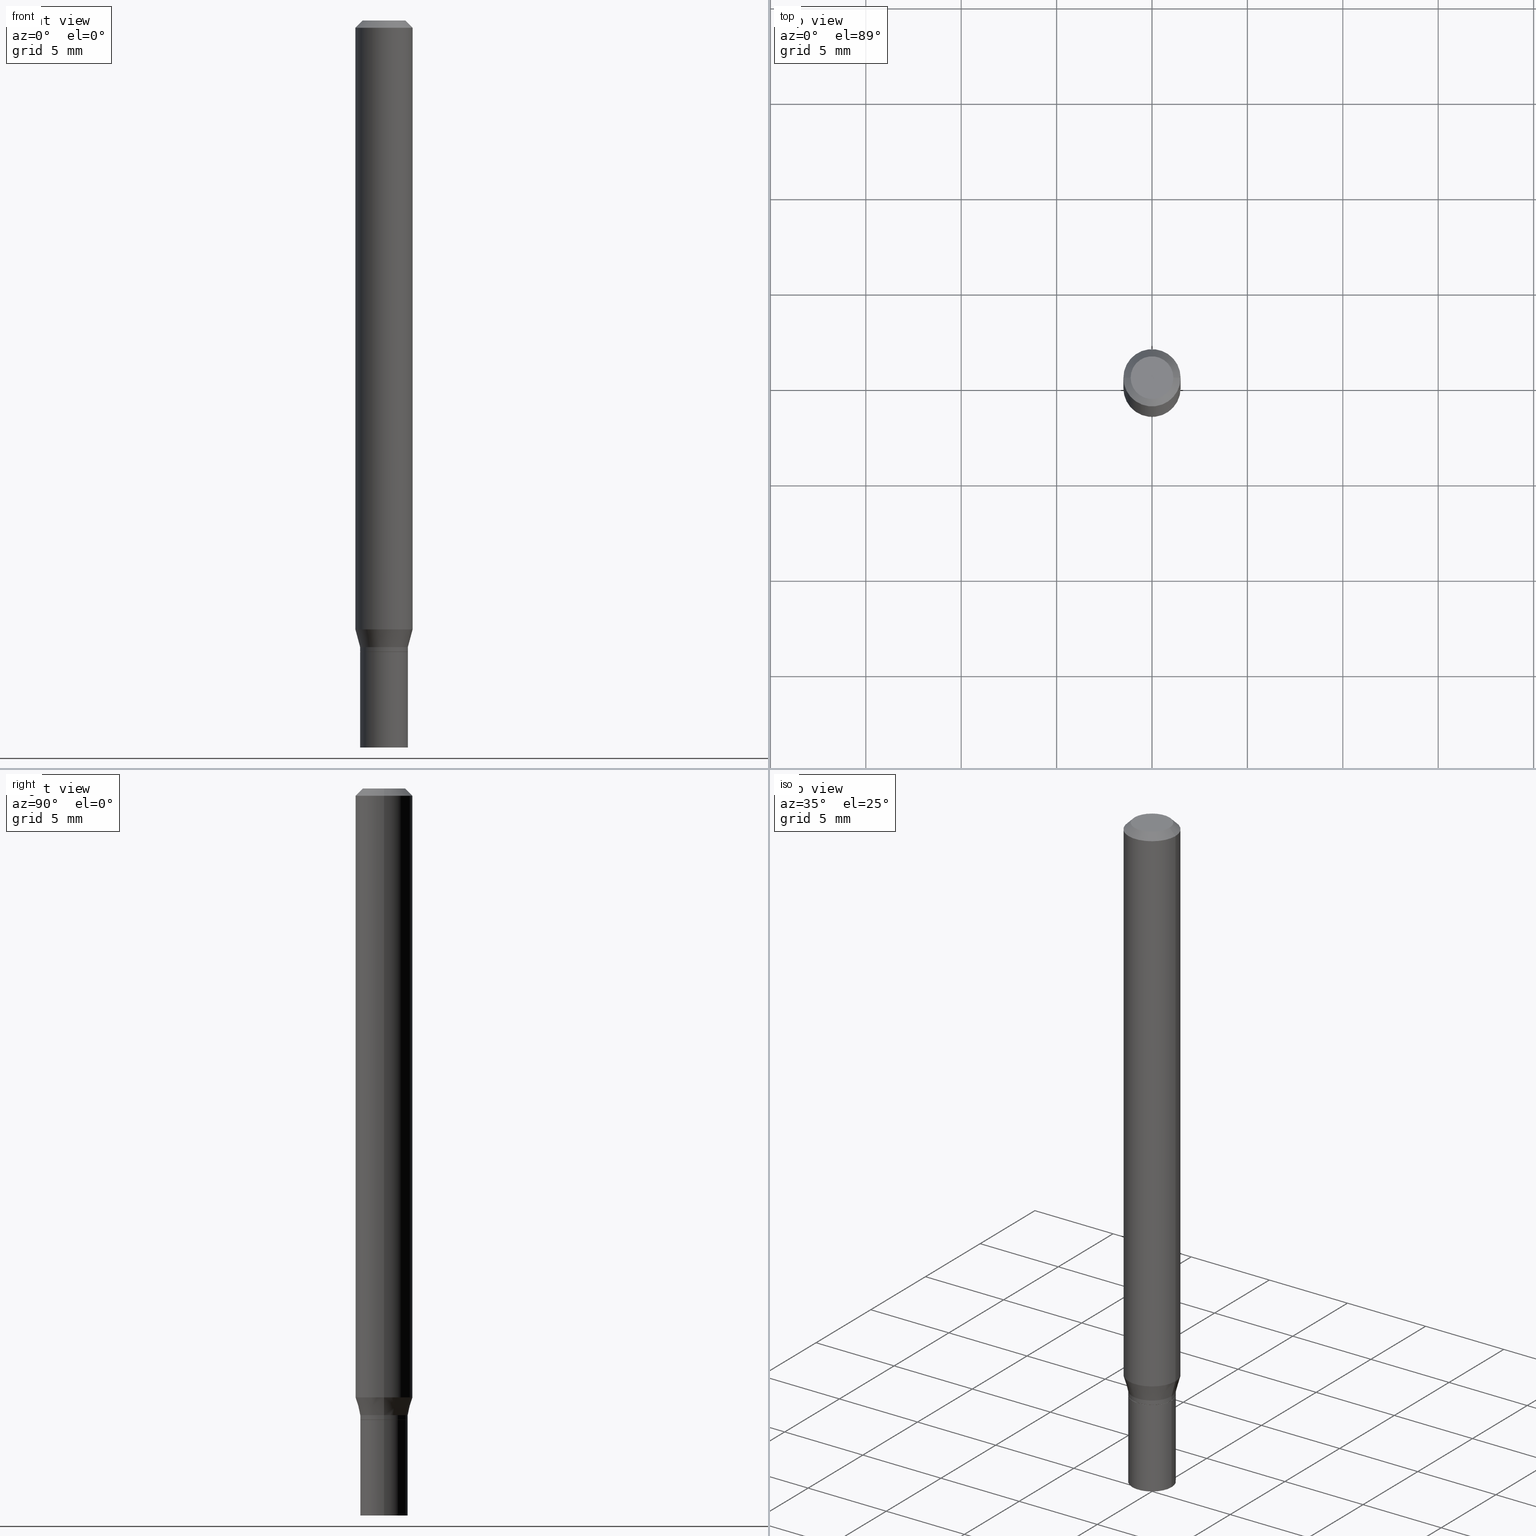
[diagram: canonical four-view strip — front | top / right | iso, engineering-drawing reading convention]
A machine part, canonical four-view strip (front | top / right | iso — engineering-drawing reading convention). The complete STEP part file that produces these views, byte-faithful:
ISO-10303-21;
HEADER;
FILE_DESCRIPTION (( 'STEP AP203' ),
    '1' );
FILE_NAME ('49139.STEP',
    '2024-03-12T19:57:07',
    ( '' ),
    ( '' ),
    'SwSTEP 2.0',
    'SolidWorks 2023',
    '' );
FILE_SCHEMA (( 'CONFIG_CONTROL_DESIGN' ));
ENDSEC;

DATA;
#1 = FACE_OUTER_BOUND ( 'NONE', #26, .T. ) ;
#2 = ORIENTED_EDGE ( 'NONE', *, *, #53, .T. ) ;
#3 = DIRECTION ( 'NONE',  ( -2.445468806185136877E-29, 3.491481338843145188E-15, 1.000000000000000000 ) ) ;
#4 = EDGE_LOOP ( 'NONE', ( #274, #415, #161, #230 ) ) ;
#5 = ORIENTED_EDGE ( 'NONE', *, *, #147, .F. ) ;
#6 = CIRCLE ( 'NONE', #303, 0.04919999999999991741 ) ;
#7 = PRODUCT_DEFINITION ( 'UNKNOWN', '', #244, #185 ) ;
#8 = AXIS2_PLACEMENT_3D ( 'NONE', #406, #445, #105 ) ;
#9 = LINE ( 'NONE', #154, #466 ) ;
#10 = DIRECTION ( 'NONE',  ( -2.445468806185136597E-29, 3.491481338843145583E-15, 1.000000000000000000 ) ) ;
#11 = CARTESIAN_POINT ( 'NONE',  ( -0.04870000000000000023, -4.203715020331334704E-15, -1.303100000000000147 ) ) ;
#12 = CARTESIAN_POINT ( 'NONE',  ( 3.668203209277704895E-29, -5.237222008264718177E-15, -1.500000000000000222 ) ) ;
#13 = DIRECTION ( 'NONE',  ( 1.000000000000000000, -6.982962677686272233E-15, 0.000000000000000000 ) ) ;
#14 = LINE ( 'NONE', #454, #310 ) ;
#15 = CARTESIAN_POINT ( 'NONE',  ( 3.186690401339851824E-29, -4.549749332646504039E-15, -1.303100000000000147 ) ) ;
#16 = CIRCLE ( 'NONE', #235, 0.04920000000000000068 ) ;
#17 = DIRECTION ( 'NONE',  ( 1.000000000000000000, -6.982962677686266711E-15, 4.876176775795935793E-29 ) ) ;
#18 = VERTEX_POINT ( 'NONE', #427 ) ;
#19 = EDGE_CURVE ( 'NONE', #126, #286, #368, .T. ) ;
#20 = LINE ( 'NONE', #309, #407 ) ;
#21 = VECTOR ( 'NONE', #375, 39.37007874015748143 ) ;
#22 = DIRECTION ( 'NONE',  ( 1.000000000000000000, -6.982962677686273810E-15, 0.000000000000000000 ) ) ;
#23 = PERSON_AND_ORGANIZATION ( #218, #389 ) ;
#24 = DIRECTION ( 'NONE',  ( 1.000000000000000000, -6.982962677686267499E-15, 4.876176775795936353E-29 ) ) ;
#25 = AXIS2_PLACEMENT_3D ( 'NONE', #73, #302, #17 ) ;
#26 = EDGE_LOOP ( 'NONE', ( #428, #28, #365, #433 ) ) ;
#27 = CALENDAR_DATE ( 2024, 12, 3 ) ;
#28 = ORIENTED_EDGE ( 'NONE', *, *, #57, .T. ) ;
#29 = LOCAL_TIME ( 15, 57, 7.000000000000000000, #292 ) ;
#30 = CONICAL_SURFACE ( 'NONE', #8, 0.04919999999999991741, 0.2617993877991506291 ) ;
#31 = VERTEX_POINT ( 'NONE', #41 ) ;
#32 = ORIENTED_EDGE ( 'NONE', *, *, #40, .T. ) ;
#33 = LINE ( 'NONE', #184, #321 ) ;
#34 = FACE_OUTER_BOUND ( 'NONE', #83, .T. ) ;
#35 = EDGE_LOOP ( 'NONE', ( #179, #32, #380, #425 ) ) ;
#36 = CC_DESIGN_APPROVAL ( #128, ( #244 ) ) ;
#37 = APPROVAL_ROLE ( '' ) ;
#38 = DIRECTION ( 'NONE',  ( -2.445468806185136597E-29, 3.491481338843145583E-15, 1.000000000000000000 ) ) ;
#39 = PLANE ( 'NONE',  #424 ) ;
#40 = EDGE_CURVE ( 'NONE', #169, #286, #72, .T. ) ;
#41 = CARTESIAN_POINT ( 'NONE',  ( -0.04870000000000000023, -4.201065793157224292E-15, -1.303100000000000147 ) ) ;
#42 = DIRECTION ( 'NONE',  ( -2.445468806185136877E-29, 3.491481338843145188E-15, 1.000000000000000000 ) ) ;
#43 = CARTESIAN_POINT ( 'NONE',  ( 3.161991166397382055E-29, -4.514485371124187300E-15, -1.293000000000000149 ) ) ;
#44 = CARTESIAN_POINT ( 'NONE',  ( 0.05905000000000000526, -4.123439461173741313E-16, 2.879382386107500571E-30 ) ) ;
#45 = DIRECTION ( 'NONE',  ( -2.445468806185136597E-29, 3.491481338843145583E-15, 1.000000000000000000 ) ) ;
#46 = COORDINATED_UNIVERSAL_TIME_OFFSET ( 5, 0, .BEHIND. ) ;
#47 = DIRECTION ( 'NONE',  ( -2.445468806185136597E-29, 3.491481338843145583E-15, 1.000000000000000000 ) ) ;
#48 = VERTEX_POINT ( 'NONE', #364 ) ;
#49 = CYLINDRICAL_SURFACE ( 'NONE', #397, 0.05905000000000000526 ) ;
#50 = COORDINATED_UNIVERSAL_TIME_OFFSET ( 5, 0, .BEHIND. ) ;
#51 = VECTOR ( 'NONE', #249, 39.37007874015748143 ) ;
#52 = ADVANCED_FACE ( 'NONE', ( #182 ), #122, .T. ) ;
#53 = EDGE_CURVE ( 'NONE', #246, #312, #9, .T. ) ;
#54 = VERTEX_POINT ( 'NONE', #224 ) ;
#55 = DATE_TIME_ROLE ( 'classification_date' ) ;
#56 = AXIS2_PLACEMENT_3D ( 'NONE', #208, #143, #443 ) ;
#57 = EDGE_CURVE ( 'NONE', #54, #270, #416, .T. ) ;
#58 = ORIENTED_EDGE ( 'NONE', *, *, #107, .F. ) ;
#59 = CYLINDRICAL_SURFACE ( 'NONE', #455, 0.04919999999999991741 ) ;
#60 = ORIENTED_EDGE ( 'NONE', *, *, #53, .F. ) ;
#61 = ADVANCED_FACE ( 'NONE', ( #297 ), #30, .T. ) ;
#62 = CARTESIAN_POINT ( 'NONE',  ( 3.576687321579069994E-29, -5.368277968210015545E-15, -1.500000000000000222 ) ) ;
#63 = APPROVAL ( #383, 'UNSPECIFIED' ) ;
#64 = ORIENTED_EDGE ( 'NONE', *, *, #80, .F. ) ;
#65 = VERTEX_POINT ( 'NONE', #189 ) ;
#66 = CARTESIAN_POINT ( 'NONE',  ( 0.04870000000000000023, -4.889819615049825556E-15, -1.303100000000000147 ) ) ;
#67 = FACE_OUTER_BOUND ( 'NONE', #253, .T. ) ;
#68 = EDGE_CURVE ( 'NONE', #137, #18, #448, .T. ) ;
#69 = AXIS2_PLACEMENT_3D ( 'NONE', #192, #10, #155 ) ;
#70 = CARTESIAN_POINT ( 'NONE',  ( -0.05905000000000000526, 4.195754854663391971E-16, -2.904631170795522242E-30 ) ) ;
#71 = DIRECTION ( 'NONE',  ( -2.445468806185136597E-29, 3.491481338843145583E-15, 1.000000000000000000 ) ) ;
#72 = LINE ( 'NONE', #373, #429 ) ;
#73 = CARTESIAN_POINT ( 'NONE',  ( 0.000000000000000000, 0.000000000000000000, 0.000000000000000000 ) ) ;
#74 = SECURITY_CLASSIFICATION_LEVEL ( 'unclassified' ) ;
#75 = ADVANCED_FACE ( 'NONE', ( #34 ), #116, .T. ) ;
#76 = DIRECTION ( 'NONE',  ( -2.445468806185136597E-29, 3.491481338843145583E-15, 1.000000000000000000 ) ) ;
#77 = DIRECTION ( 'NONE',  ( -2.445468806185136597E-29, 3.491481338843145583E-15, 1.000000000000000000 ) ) ;
#78 = EDGE_LOOP ( 'NONE', ( #462, #329 ) ) ;
#79 = CARTESIAN_POINT ( 'NONE',  ( 3.186690401339851824E-29, -4.549749332646504039E-15, -1.303100000000000147 ) ) ;
#80 = EDGE_CURVE ( 'NONE', #31, #54, #334, .T. ) ;
#81 =( NAMED_UNIT ( * ) SI_UNIT ( $, .STERADIAN. ) SOLID_ANGLE_UNIT ( ) );
#82 = CARTESIAN_POINT ( 'NONE',  ( 0.000000000000000000, 0.000000000000000000, 0.000000000000000000 ) ) ;
#83 = EDGE_LOOP ( 'NONE', ( #394, #256, #183, #207 ) ) ;
#84 = APPLICATION_PROTOCOL_DEFINITION ( 'international standard', 'config_control_design', 1994, #333 ) ;
#85 = CC_DESIGN_PERSON_AND_ORGANIZATION_ASSIGNMENT ( #228, #376, ( #320 ) ) ;
#86 = DIRECTION ( 'NONE',  ( 1.000000000000000000, 0.000000000000000000, 0.000000000000000000 ) ) ;
#87 = VERTEX_POINT ( 'NONE', #108 ) ;
#88 = APPROVAL_ROLE ( '' ) ;
#89 = EDGE_LOOP ( 'NONE', ( #250, #239, #439, #326 ) ) ;
#90 = EDGE_CURVE ( 'NONE', #312, #18, #254, .T. ) ;
#91 = CARTESIAN_POINT ( 'NONE',  ( 3.186690401339851824E-29, -4.549749332646504039E-15, -1.303100000000000147 ) ) ;
#92 = DIRECTION ( 'NONE',  ( 1.000000000000000000, -6.982962677686266711E-15, 0.000000000000000000 ) ) ;
#93 = VERTEX_POINT ( 'NONE', #66 ) ;
#94 = DIRECTION ( 'NONE',  ( -2.445468806185136597E-29, 3.491481338843145583E-15, 1.000000000000000000 ) ) ;
#95 = ORIENTED_EDGE ( 'NONE', *, *, #158, .T. ) ;
#96 = CARTESIAN_POINT ( 'NONE',  ( 0.000000000000000000, 0.000000000000000000, 0.000000000000000000 ) ) ;
#97 = FACE_OUTER_BOUND ( 'NONE', #78, .T. ) ;
#98 = ORIENTED_EDGE ( 'NONE', *, *, #172, .T. ) ;
#99 = ADVANCED_FACE ( 'NONE', ( #151 ), #157, .T. ) ;
#100 = DIRECTION ( 'NONE',  ( 1.000000000000000000, -6.982962677686273021E-15, 0.000000000000000000 ) ) ;
#101 = VERTEX_POINT ( 'NONE', #451 ) ;
#102 = AXIS2_PLACEMENT_3D ( 'NONE', #187, #300, #331 ) ;
#103 = DIMENSIONAL_EXPONENTS ( 1.000000000000000000, 0.000000000000000000, 0.000000000000000000, 0.000000000000000000, 0.000000000000000000, 0.000000000000000000, 0.000000000000000000 ) ;
#104 = ORIENTED_EDGE ( 'NONE', *, *, #232, .T. ) ;
#105 = DIRECTION ( 'NONE',  ( 1.000000000000000000, -6.982962677686273810E-15, 0.000000000000000000 ) ) ;
#106 = CARTESIAN_POINT ( 'NONE',  ( 0.05904999999999999832, -4.798480017601685178E-15, -1.256239299545446553 ) ) ;
#107 = EDGE_CURVE ( 'NONE', #270, #54, #288, .T. ) ;
#108 = CARTESIAN_POINT ( 'NONE',  ( -0.04404999999999999888, 3.337856159934041534E-16, 3.533548453838689148E-16 ) ) ;
#109 = DIRECTION ( 'NONE',  ( -1.000000000000000000, 6.982962677686265922E-15, -4.876176775795935793E-29 ) ) ;
#110 = CC_DESIGN_SECURITY_CLASSIFICATION ( #320, ( #244 ) ) ;
#111 = AXIS2_PLACEMENT_3D ( 'NONE', #393, #290, #432 ) ;
#112 = CIRCLE ( 'NONE', #387, 0.04404999999999999888 ) ;
#113 = CARTESIAN_POINT ( 'NONE',  ( 0.04920000000000000068, -4.893311096388667774E-15, -1.303100000000000147 ) ) ;
#114 = FACE_OUTER_BOUND ( 'NONE', #35, .T. ) ;
#115 = PERSON_AND_ORGANIZATION_ROLE ( 'creator' ) ;
#116 = CYLINDRICAL_SURFACE ( 'NONE', #231, 0.04919999999999991741 ) ;
#117 = PLANE ( 'NONE',  #370 ) ;
#118 = FACE_OUTER_BOUND ( 'NONE', #325, .T. ) ;
#119 = CC_DESIGN_PERSON_AND_ORGANIZATION_ASSIGNMENT ( #447, #115, ( #244 ) ) ;
#120 = CARTESIAN_POINT ( 'NONE',  ( 0.000000000000000000, 0.000000000000000000, 0.000000000000000000 ) ) ;
#121 = CARTESIAN_POINT ( 'NONE',  ( 3.161991166397382055E-29, -4.514485371124187300E-15, -1.293000000000000149 ) ) ;
#122 = CONICAL_SURFACE ( 'NONE', #199, 0.04919999999999991741, 0.2617993877991506291 ) ;
#123 = AXIS2_PLACEMENT_3D ( 'NONE', #120, #47, #272 ) ;
#124 = LOCAL_TIME ( 15, 57, 7.000000000000000000, #131 ) ;
#125 = DIRECTION ( 'NONE',  ( -1.000000000000000000, 6.982962677686266711E-15, 0.000000000000000000 ) ) ;
#126 = VERTEX_POINT ( 'NONE', #113 ) ;
#127 = EDGE_CURVE ( 'NONE', #246, #87, #263, .T. ) ;
#128 = APPROVAL ( #358, 'UNSPECIFIED' ) ;
#129 = ORIENTED_EDGE ( 'NONE', *, *, #19, .T. ) ;
#130 = ORIENTED_EDGE ( 'NONE', *, *, #209, .T. ) ;
#131 = COORDINATED_UNIVERSAL_TIME_OFFSET ( 5, 0, .BEHIND. ) ;
#132 = AXIS2_PLACEMENT_3D ( 'NONE', #121, #45, #22 ) ;
#133 = UNCERTAINTY_MEASURE_WITH_UNIT (LENGTH_MEASURE( 1.000000000000000082E-05 ), #269, 'distance_accuracy_value', 'NONE');
#134 = EDGE_CURVE ( 'NONE', #101, #48, #6, .T. ) ;
#135 = DATE_AND_TIME ( #340, #140 ) ;
#136 = DIRECTION ( 'NONE',  ( -2.445468806185136597E-29, 3.491481338843145583E-15, 1.000000000000000000 ) ) ;
#137 = VERTEX_POINT ( 'NONE', #170 ) ;
#138 = DIRECTION ( 'NONE',  ( 1.000000000000000000, -6.982962677686265922E-15, 4.876176775795935793E-29 ) ) ;
#139 = ORIENTED_EDGE ( 'NONE', *, *, #80, .T. ) ;
#140 = LOCAL_TIME ( 15, 57, 7.000000000000000000, #46 ) ;
#141 = PERSON_AND_ORGANIZATION ( #218, #389 ) ;
#142 = SHAPE_DEFINITION_REPRESENTATION ( #204, #167 ) ;
#143 = DIRECTION ( 'NONE',  ( 2.445468806185136597E-29, -3.491481338843145583E-15, -1.000000000000000000 ) ) ;
#144 = EDGE_CURVE ( 'NONE', #137, #355, #378, .T. ) ;
#145 = CLOSED_SHELL ( 'NONE', ( #251, #171, #360, #163 ) ) ;
#146 = CIRCLE ( 'NONE', #132, 0.04919999999999991741 ) ;
#147 = EDGE_CURVE ( 'NONE', #18, #312, #273, .T. ) ;
#148 = DIRECTION ( 'NONE',  ( -2.445468806185136597E-29, 3.491481338843145583E-15, 1.000000000000000000 ) ) ;
#149 = DIRECTION ( 'NONE',  ( -2.445468806185136597E-29, 3.491481338843145583E-15, 1.000000000000000000 ) ) ;
#150 = DIRECTION ( 'NONE',  ( -2.438088387897960049E-29, 3.491481338843145188E-15, 1.000000000000000000 ) ) ;
#151 = FACE_OUTER_BOUND ( 'NONE', #366, .T. ) ;
#152 = CYLINDRICAL_SURFACE ( 'NONE', #25, 0.04920000000000000068 ) ;
#153 = AXIS2_PLACEMENT_3D ( 'NONE', #298, #38, #403 ) ;
#154 = CARTESIAN_POINT ( 'NONE',  ( 0.05905000000000001914, -4.574846268510562433E-16, -0.01499999999999999944 ) ) ;
#155 = DIRECTION ( 'NONE',  ( 1.000000000000000000, -6.982962677686261977E-15, 0.000000000000000000 ) ) ;
#156 = CARTESIAN_POINT ( 'NONE',  ( 0.000000000000000000, 0.000000000000000000, 0.000000000000000000 ) ) ;
#157 = CONICAL_SURFACE ( 'NONE', #275, 0.04870000000000000023, 0.7853981633974739252 ) ;
#158 = EDGE_CURVE ( 'NONE', #101, #355, #318, .T. ) ;
#159 = ORIENTED_EDGE ( 'NONE', *, *, #285, .F. ) ;
#160 = PERSON_AND_ORGANIZATION_ROLE ( 'creator' ) ;
#161 = ORIENTED_EDGE ( 'NONE', *, *, #314, .T. ) ;
#162 = AXIS2_PLACEMENT_3D ( 'NONE', #362, #136, #100 ) ;
#163 = ADVANCED_FACE ( 'NONE', ( #323 ), #284, .F. ) ;
#164 = APPROVAL ( #248, 'UNSPECIFIED' ) ;
#165 = CARTESIAN_POINT ( 'NONE',  ( 3.161991166397382055E-29, -4.514485371124187300E-15, -1.293000000000000149 ) ) ;
#166 = ORIENTED_EDGE ( 'NONE', *, *, #464, .T. ) ;
#167 = ADVANCED_BREP_SHAPE_REPRESENTATION ( '49139', ( #241, #392, #289 ), #186 ) ;
#168 = DIRECTION ( 'NONE',  ( 1.000000000000000000, -6.982962677686273810E-15, 0.000000000000000000 ) ) ;
#169 = VERTEX_POINT ( 'NONE', #213 ) ;
#170 = CARTESIAN_POINT ( 'NONE',  ( -0.05904999999999999832, -3.966560586017971554E-15, -1.256239299545446553 ) ) ;
#171 = ADVANCED_FACE ( 'NONE', ( #97 ), #359, .F. ) ;
#172 = EDGE_CURVE ( 'NONE', #286, #126, #353, .T. ) ;
#173 = EDGE_LOOP ( 'NONE', ( #129, #98 ) ) ;
#174 = CONICAL_SURFACE ( 'NONE', #56, 0.05905000000000001914, 0.7853981633974372878 ) ;
#175 = DIRECTION ( 'NONE',  ( 1.000000000000000000, -6.982962677686266711E-15, 4.876176775795935793E-29 ) ) ;
#176 = DIRECTION ( 'NONE',  ( -2.445468806185136597E-29, 3.491481338843145583E-15, 1.000000000000000000 ) ) ;
#177 = ORIENTED_EDGE ( 'NONE', *, *, #147, .T. ) ;
#178 = DIRECTION ( 'NONE',  ( -2.445468806185136597E-29, 3.491481338843145583E-15, 1.000000000000000000 ) ) ;
#179 = ORIENTED_EDGE ( 'NONE', *, *, #238, .T. ) ;
#180 = ADVANCED_FACE ( 'NONE', ( #1 ), #59, .T. ) ;
#181 = DATE_AND_TIME ( #27, #29 ) ;
#182 = FACE_OUTER_BOUND ( 'NONE', #458, .T. ) ;
#183 = ORIENTED_EDGE ( 'NONE', *, *, #134, .F. ) ;
#184 = CARTESIAN_POINT ( 'NONE',  ( -0.04919999999999991741, 3.495870259939687046E-16, -2.420116064405409213E-30 ) ) ;
#185 = DESIGN_CONTEXT ( 'detailed design', #444, 'design' ) ;
#186 =( GEOMETRIC_REPRESENTATION_CONTEXT ( 3 ) GLOBAL_UNCERTAINTY_ASSIGNED_CONTEXT ( ( #133 ) ) GLOBAL_UNIT_ASSIGNED_CONTEXT ( ( #269, #203, #81 ) ) REPRESENTATION_CONTEXT ( 'NONE', 'WORKASPACE' ) );
#187 = CARTESIAN_POINT ( 'NONE',  ( 3.185467666936759583E-29, -4.548003591977082535E-15, -1.302600000000000202 ) ) ;
#188 = CARTESIAN_POINT ( 'NONE',  ( 3.186690401339851824E-29, -4.549749332646504039E-15, -1.303100000000000147 ) ) ;
#189 = CARTESIAN_POINT ( 'NONE',  ( 0.04920000000000000068, -5.580783772006882701E-15, -1.500000000000000222 ) ) ;
#190 = DIRECTION ( 'NONE',  ( -0.7071067811865396902, 2.468850131082174625E-15, -0.7071067811865553443 ) ) ;
#191 = CARTESIAN_POINT ( 'NONE',  ( 0.000000000000000000, 0.000000000000000000, 0.000000000000000000 ) ) ;
#192 = CARTESIAN_POINT ( 'NONE',  ( 3.668203209277704895E-29, -5.237222008264718177E-15, -1.500000000000000222 ) ) ;
#193 = CIRCLE ( 'NONE', #223, 0.04870000000000000023 ) ;
#194 = LINE ( 'NONE', #299, #295 ) ;
#195 = ORIENTED_EDGE ( 'NONE', *, *, #459, .T. ) ;
#196 = FACE_OUTER_BOUND ( 'NONE', #319, .T. ) ;
#197 = EDGE_CURVE ( 'NONE', #54, #48, #33, .T. ) ;
#198 = CARTESIAN_POINT ( 'NONE',  ( 3.668203209277705088E-31, -5.237222008264718399E-17, -0.01499999999999999944 ) ) ;
#199 = AXIS2_PLACEMENT_3D ( 'NONE', #43, #327, #259 ) ;
#200 = CALENDAR_DATE ( 2024, 12, 3 ) ;
#201 = CIRCLE ( 'NONE', #69, 0.04920000000000000068 ) ;
#202 = APPROVAL_PERSON_ORGANIZATION ( #317, #164, #88 ) ;
#203 =( NAMED_UNIT ( * ) PLANE_ANGLE_UNIT ( ) SI_UNIT ( $, .RADIAN. ) );
#204 = PRODUCT_DEFINITION_SHAPE ( 'NONE', 'NONE',  #7 ) ;
#205 = CALENDAR_DATE ( 2024, 12, 3 ) ;
#206 = AXIS2_PLACEMENT_3D ( 'NONE', #264, #410, #226 ) ;
#207 = ORIENTED_EDGE ( 'NONE', *, *, #374, .F. ) ;
#208 = CARTESIAN_POINT ( 'NONE',  ( 3.668203209277705088E-31, -5.237222008264718399E-17, -0.01499999999999999944 ) ) ;
#209 = EDGE_CURVE ( 'NONE', #93, #31, #440, .T. ) ;
#210 = CC_DESIGN_PERSON_AND_ORGANIZATION_ASSIGNMENT ( #23, #160, ( #7 ) ) ;
#211 = ORIENTED_EDGE ( 'NONE', *, *, #90, .T. ) ;
#212 = LOCAL_TIME ( 15, 57, 7.000000000000000000, #237 ) ;
#213 = CARTESIAN_POINT ( 'NONE',  ( -0.04920000000000000068, -4.543898644461642453E-15, -1.500000000000000222 ) ) ;
#214 = AXIS2_PLACEMENT_3D ( 'NONE', #261, #71, #225 ) ;
#215 = ORIENTED_EDGE ( 'NONE', *, *, #127, .T. ) ;
#216 = ADVANCED_FACE ( 'NONE', ( #391 ), #174, .T. ) ;
#217 = DIRECTION ( 'NONE',  ( 1.000000000000000000, -6.982962677686271444E-15, 0.000000000000000000 ) ) ;
#218 = PERSON ( 'UNSPECIFIED', 'UNSPECIFIED', 'UNSPECIFIED', ('UNSPECIFIED'), ('UNSPECIFIED'), ('UNSPECIFIED') ) ;
#219 = ORIENTED_EDGE ( 'NONE', *, *, #127, .F. ) ;
#220 = DIRECTION ( 'NONE',  ( 0.7071067811865396902, -7.319954787623229224E-15, -0.7071067811865553443 ) ) ;
#221 = DIRECTION ( 'NONE',  ( -2.445468806185136597E-29, 3.491481338843145583E-15, 1.000000000000000000 ) ) ;
#222 = VECTOR ( 'NONE', #369, 39.37007874015748143 ) ;
#223 = AXIS2_PLACEMENT_3D ( 'NONE', #453, #379, #420 ) ;
#224 = CARTESIAN_POINT ( 'NONE',  ( -0.04919999999999992435, -4.198416565983113880E-15, -1.302600000000000202 ) ) ;
#225 = DIRECTION ( 'NONE',  ( 1.000000000000000000, -6.982962677686273021E-15, 0.000000000000000000 ) ) ;
#226 = DIRECTION ( 'NONE',  ( 1.000000000000000000, -6.982962677686265922E-15, 4.819687581474398999E-29 ) ) ;
#227 = LINE ( 'NONE', #44, #449 ) ;
#228 = PERSON_AND_ORGANIZATION ( #218, #389 ) ;
#229 = DIRECTION ( 'NONE',  ( 1.000000000000000000, -6.982962677686271444E-15, 0.000000000000000000 ) ) ;
#230 = ORIENTED_EDGE ( 'NONE', *, *, #172, .F. ) ;
#231 = AXIS2_PLACEMENT_3D ( 'NONE', #191, #336, #442 ) ;
#232 = EDGE_CURVE ( 'NONE', #93, #270, #341, .T. ) ;
#233 = DIRECTION ( 'NONE',  ( 2.445468806185136597E-29, -3.491481338843145583E-15, -1.000000000000000000 ) ) ;
#234 = PERSON_AND_ORGANIZATION ( #218, #389 ) ;
#235 = AXIS2_PLACEMENT_3D ( 'NONE', #12, #221, #305 ) ;
#236 = ORIENTED_EDGE ( 'NONE', *, *, #464, .F. ) ;
#237 = COORDINATED_UNIVERSAL_TIME_OFFSET ( 5, 0, .BEHIND. ) ;
#238 = EDGE_CURVE ( 'NONE', #65, #169, #201, .T. ) ;
#239 = ORIENTED_EDGE ( 'NONE', *, *, #68, .T. ) ;
#240 = ORIENTED_EDGE ( 'NONE', *, *, #285, .T. ) ;
#241 = MANIFOLD_SOLID_BREP ( 'Body-Move/Copy2[1]', #145 ) ;
#242 = DIRECTION ( 'NONE',  ( -2.445468806185136597E-29, 3.491481338843145583E-15, 1.000000000000000000 ) ) ;
#243 = AXIS2_PLACEMENT_3D ( 'NONE', #287, #178, #247 ) ;
#244 = PRODUCT_DEFINITION_FORMATION_WITH_SPECIFIED_SOURCE ( 'ANY', '', #351, .NOT_KNOWN. ) ;
#245 = DIRECTION ( 'NONE',  ( -2.438088387897960049E-29, 3.491481338843145188E-15, 1.000000000000000000 ) ) ;
#246 = VERTEX_POINT ( 'NONE', #335 ) ;
#247 = DIRECTION ( 'NONE',  ( 1.000000000000000000, -6.982962677686271444E-15, 0.000000000000000000 ) ) ;
#248 = APPROVAL_STATUS ( 'not_yet_approved' ) ;
#249 = DIRECTION ( 'NONE',  ( 0.2588190451025219052, 1.565188264969617826E-15, 0.9659258262890679791 ) ) ;
#250 = ORIENTED_EDGE ( 'NONE', *, *, #402, .T. ) ;
#251 = ADVANCED_FACE ( 'NONE', ( #114 ), #152, .T. ) ;
#252 = CARTESIAN_POINT ( 'NONE',  ( 3.435617637421961278E-16, 0.04919999999999544876, -1.303100000000000369 ) ) ;
#253 = EDGE_LOOP ( 'NONE', ( #294, #266 ) ) ;
#254 = CIRCLE ( 'NONE', #153, 0.05905000000000001914 ) ;
#255 = CC_DESIGN_DATE_AND_TIME_ASSIGNMENT ( #367, #400, ( #7 ) ) ;
#256 = ORIENTED_EDGE ( 'NONE', *, *, #197, .T. ) ;
#257 = DIRECTION ( 'NONE',  ( -0.7071067811865656694, 7.493145998870420424E-15, 0.7071067811865294761 ) ) ;
#258 = FACE_OUTER_BOUND ( 'NONE', #4, .T. ) ;
#259 = DIRECTION ( 'NONE',  ( 1.000000000000000000, -6.982962677686273810E-15, 0.000000000000000000 ) ) ;
#260 = LOCAL_TIME ( 15, 57, 7.000000000000000000, #50 ) ;
#262 = AXIS2_PLACEMENT_3D ( 'NONE', #304, #148, #13 ) ;
#261 = CARTESIAN_POINT ( 'NONE',  ( 3.072094020142255218E-29, -4.386136071484311047E-15, -1.256239299545446553 ) ) ;
#263 = CIRCLE ( 'NONE', #206, 0.04404999999999999888 ) ;
#264 = CARTESIAN_POINT ( 'NONE',  ( -8.641182519006289553E-45, 1.233731848647591164E-30, 3.533548453838711334E-16 ) ) ;
#265 = CARTESIAN_POINT ( 'NONE',  ( 0.04870000000000000023, -4.889819615049825556E-15, -1.303100000000000147 ) ) ;
#266 = ORIENTED_EDGE ( 'NONE', *, *, #459, .F. ) ;
#267 = PERSON_AND_ORGANIZATION ( #218, #389 ) ;
#268 = CARTESIAN_POINT ( 'NONE',  ( 3.075995059520799729E-16, 0.04404999999999999888, 2.287766971589501637E-17 ) ) ;
#269 =( CONVERSION_BASED_UNIT ( 'INCH', #422 ) LENGTH_UNIT ( ) NAMED_UNIT ( #103 ) );
#270 = VERTEX_POINT ( 'NONE', #332 ) ;
#271 = ADVANCED_FACE ( 'NONE', ( #196 ), #357, .T. ) ;
#272 = DIRECTION ( 'NONE',  ( 1.000000000000000000, -6.982962677686266711E-15, 4.876176775795935793E-29 ) ) ;
#273 = CIRCLE ( 'NONE', #430, 0.05905000000000001914 ) ;
#274 = ORIENTED_EDGE ( 'NONE', *, *, #40, .F. ) ;
#275 = AXIS2_PLACEMENT_3D ( 'NONE', #15, #149, #217 ) ;
#276 = DIRECTION ( 'NONE',  ( -2.445468806185136597E-29, 3.491481338843145583E-15, 1.000000000000000000 ) ) ;
#277 = EDGE_LOOP ( 'NONE', ( #60, #236, #240, #177 ) ) ;
#278 = DIRECTION ( 'NONE',  ( 1.000000000000000000, -6.982962677686267499E-15, 4.876176775795936353E-29 ) ) ;
#279 = DIRECTION ( 'NONE',  ( 0.000000000000000000, 0.000000000000000000, 1.000000000000000000 ) ) ;
#280 = EDGE_CURVE ( 'NONE', #355, #312, #227, .T. ) ;
#281 = APPLICATION_PROTOCOL_DEFINITION ( 'international standard', 'config_control_design', 1994, #444 ) ;
#282 = AXIS2_PLACEMENT_3D ( 'NONE', #62, #245, #138 ) ;
#283 = APPROVAL_DATE_TIME ( #354, #164 ) ;
#284 = PLANE ( 'NONE',  #339 ) ;
#285 = EDGE_CURVE ( 'NONE', #87, #18, #194, .T. ) ;
#286 = VERTEX_POINT ( 'NONE', #338 ) ;
#287 = CARTESIAN_POINT ( 'NONE',  ( 3.186690401339851824E-29, -4.549749332646504039E-15, -1.303100000000000147 ) ) ;
#288 = CIRCLE ( 'NONE', #102, 0.04919999999999992435 ) ;
#289 = AXIS2_PLACEMENT_3D ( 'NONE', #311, #279, #86 ) ;
#290 = DIRECTION ( 'NONE',  ( -2.445468806185136597E-29, 3.491481338843145583E-15, 1.000000000000000000 ) ) ;
#291 = ORIENTED_EDGE ( 'NONE', *, *, #144, .F. ) ;
#292 = COORDINATED_UNIVERSAL_TIME_OFFSET ( 5, 0, .BEHIND. ) ;
#293 = ORIENTED_EDGE ( 'NONE', *, *, #144, .T. ) ;
#294 = ORIENTED_EDGE ( 'NONE', *, *, #209, .F. ) ;
#295 = VECTOR ( 'NONE', #190, 39.37007874015748143 ) ;
#296 = APPROVAL_DATE_TIME ( #181, #128 ) ;
#297 = FACE_OUTER_BOUND ( 'NONE', #356, .T. ) ;
#298 = CARTESIAN_POINT ( 'NONE',  ( 3.668203209277705088E-31, -5.237222008264718399E-17, -0.01499999999999999944 ) ) ;
#299 = CARTESIAN_POINT ( 'NONE',  ( -0.05905000000000001914, 3.599717260347269535E-16, -0.01499999999999999944 ) ) ;
#300 = DIRECTION ( 'NONE',  ( -2.445468806185136597E-29, 3.491481338843145583E-15, 1.000000000000000000 ) ) ;
#301 = APPROVAL_PERSON_ORGANIZATION ( #141, #128, #37 ) ;
#302 = DIRECTION ( 'NONE',  ( -2.445468806185136597E-29, 3.491481338843145583E-15, 1.000000000000000000 ) ) ;
#303 = AXIS2_PLACEMENT_3D ( 'NONE', #165, #315, #168 ) ;
#304 = CARTESIAN_POINT ( 'NONE',  ( 3.185467666936759583E-29, -4.548003591977082535E-15, -1.302600000000000202 ) ) ;
#305 = DIRECTION ( 'NONE',  ( 1.000000000000000000, -6.982962677686261977E-15, 0.000000000000000000 ) ) ;
#306 = ORIENTED_EDGE ( 'NONE', *, *, #158, .F. ) ;
#307 = CARTESIAN_POINT ( 'NONE',  ( 0.05905000000000001914, -4.647161662000214077E-16, -0.01499999999999999944 ) ) ;
#308 =( LENGTH_UNIT ( ) NAMED_UNIT ( * ) SI_UNIT ( $, .METRE. ) );
#309 = CARTESIAN_POINT ( 'NONE',  ( -0.04919999999999991741, -4.164898345130218645E-15, -1.293000000000000149 ) ) ;
#310 = VECTOR ( 'NONE', #381, 39.37007874015748143 ) ;
#311 = CARTESIAN_POINT ( 'NONE',  ( 0.000000000000000000, 0.000000000000000000, 0.000000000000000000 ) ) ;
#312 = VERTEX_POINT ( 'NONE', #307 ) ;
#313 = CC_DESIGN_PERSON_AND_ORGANIZATION_ASSIGNMENT ( #234, #456, ( #351 ) ) ;
#314 = EDGE_CURVE ( 'NONE', #65, #126, #14, .T. ) ;
#315 = DIRECTION ( 'NONE',  ( -2.445468806185136597E-29, 3.491481338843145583E-15, 1.000000000000000000 ) ) ;
#316 = DIRECTION ( 'NONE',  ( 1.000000000000000000, -6.982962677686261977E-15, 0.000000000000000000 ) ) ;
#317 = PERSON_AND_ORGANIZATION ( #218, #389 ) ;
#318 = LINE ( 'NONE', #463, #51 ) ;
#319 = EDGE_LOOP ( 'NONE', ( #64, #195, #104, #363 ) ) ;
#320 = SECURITY_CLASSIFICATION ( '', '', #74 ) ;
#321 = VECTOR ( 'NONE', #3, 39.37007874015748143 ) ;
#322 = AXIS2_PLACEMENT_3D ( 'NONE', #198, #233, #125 ) ;
#323 = FACE_OUTER_BOUND ( 'NONE', #173, .T. ) ;
#324 = ORIENTED_EDGE ( 'NONE', *, *, #412, .T. ) ;
#325 = EDGE_LOOP ( 'NONE', ( #219, #2, #211, #159 ) ) ;
#326 = ORIENTED_EDGE ( 'NONE', *, *, #280, .F. ) ;
#327 = DIRECTION ( 'NONE',  ( -2.445468806185136597E-29, 3.491481338843145583E-15, 1.000000000000000000 ) ) ;
#328 = VECTOR ( 'NONE', #409, 39.37007874015748143 ) ;
#329 = ORIENTED_EDGE ( 'NONE', *, *, #330, .F. ) ;
#330 = EDGE_CURVE ( 'NONE', #169, #65, #16, .T. ) ;
#331 = DIRECTION ( 'NONE',  ( 1.000000000000000000, -6.982962677686272233E-15, 0.000000000000000000 ) ) ;
#332 = CARTESIAN_POINT ( 'NONE',  ( 0.04919999999999992435, -4.891565355719246271E-15, -1.302600000000000202 ) ) ;
#333 = APPLICATION_CONTEXT ( 'configuration controlled 3d designs of mechanical parts and assemblies' ) ;
#334 = LINE ( 'NONE', #11, #388 ) ;
#335 = CARTESIAN_POINT ( 'NONE',  ( 0.04404999999999999888, -3.798447818264455642E-16, 3.533548453838735986E-16 ) ) ;
#336 = DIRECTION ( 'NONE',  ( -2.445468806185136597E-29, 3.491481338843145583E-15, 1.000000000000000000 ) ) ;
#337 = CC_DESIGN_APPROVAL ( #164, ( #320 ) ) ;
#338 = CARTESIAN_POINT ( 'NONE',  ( -0.04920000000000000068, -4.543898644461642453E-15, -1.303100000000000147 ) ) ;
#339 = AXIS2_PLACEMENT_3D ( 'NONE', #252, #438, #398 ) ;
#340 = CALENDAR_DATE ( 2024, 12, 3 ) ;
#341 = LINE ( 'NONE', #265, #21 ) ;
#342 = DIRECTION ( 'NONE',  ( 1.000000000000000000, -6.982962677686265922E-15, 4.819687581474398999E-29 ) ) ;
#343 = CC_DESIGN_DATE_AND_TIME_ASSIGNMENT ( #135, #55, ( #320 ) ) ;
#344 = APPROVAL_DATE_TIME ( #348, #63 ) ;
#345 = FACE_OUTER_BOUND ( 'NONE', #89, .T. ) ;
#346 = CIRCLE ( 'NONE', #214, 0.05904999999999999832 ) ;
#347 = CC_DESIGN_APPROVAL ( #63, ( #7 ) ) ;
#348 = DATE_AND_TIME ( #200, #260 ) ;
#349 = ADVANCED_FACE ( 'NONE', ( #452 ), #117, .F. ) ;
#350 = CARTESIAN_POINT ( 'NONE',  ( -8.641182519006289553E-45, 1.233731848647591164E-30, 3.533548453838711334E-16 ) ) ;
#351 = PRODUCT ( '49139', '49139', '', ( #460 ) ) ;
#352 = CLOSED_SHELL ( 'NONE', ( #75, #99, #450, #423, #52, #61, #405, #216, #349, #382, #271, #180 ) ) ;
#353 = CIRCLE ( 'NONE', #111, 0.04920000000000000068 ) ;
#354 = DATE_AND_TIME ( #205, #212 ) ;
#355 = VERTEX_POINT ( 'NONE', #106 ) ;
#356 = EDGE_LOOP ( 'NONE', ( #399, #324, #95, #291 ) ) ;
#357 = CONICAL_SURFACE ( 'NONE', #461, 0.04870000000000000023, 0.7853981633974739252 ) ;
#358 = APPROVAL_STATUS ( 'not_yet_approved' ) ;
#359 = PLANE ( 'NONE',  #282 ) ;
#360 = ADVANCED_FACE ( 'NONE', ( #258 ), #377, .T. ) ;
#361 = CALENDAR_DATE ( 2024, 12, 3 ) ;
#362 = CARTESIAN_POINT ( 'NONE',  ( 3.072094020142255218E-29, -4.386136071484311047E-15, -1.256239299545446553 ) ) ;
#363 = ORIENTED_EDGE ( 'NONE', *, *, #57, .F. ) ;
#364 = CARTESIAN_POINT ( 'NONE',  ( -0.04919999999999991741, -4.065729465574095888E-15, -1.293000000000000149 ) ) ;
#365 = ORIENTED_EDGE ( 'NONE', *, *, #374, .T. ) ;
#366 = EDGE_LOOP ( 'NONE', ( #130, #139, #58, #386 ) ) ;
#367 = DATE_AND_TIME ( #361, #124 ) ;
#368 = CIRCLE ( 'NONE', #418, 0.04920000000000000068 ) ;
#369 = DIRECTION ( 'NONE',  ( -2.445468806185136877E-29, 3.491481338843145188E-15, 1.000000000000000000 ) ) ;
#370 = AXIS2_PLACEMENT_3D ( 'NONE', #268, #413, #109 ) ;
#371 = DIRECTION ( 'NONE',  ( -2.445468806185136877E-29, 3.491481338843145188E-15, 1.000000000000000000 ) ) ;
#372 = FACE_OUTER_BOUND ( 'NONE', #437, .T. ) ;
#373 = CARTESIAN_POINT ( 'NONE',  ( -0.04920000000000000068, 3.495870259939692963E-16, -2.420116064405413767E-30 ) ) ;
#374 = EDGE_CURVE ( 'NONE', #270, #101, #417, .T. ) ;
#375 = DIRECTION ( 'NONE',  ( 0.7071067811865656694, -2.468850131082446387E-15, 0.7071067811865294761 ) ) ;
#376 = PERSON_AND_ORGANIZATION_ROLE ( 'classification_officer' ) ;
#377 = CYLINDRICAL_SURFACE ( 'NONE', #123, 0.04920000000000000068 ) ;
#378 = CIRCLE ( 'NONE', #162, 0.05904999999999999832 ) ;
#379 = DIRECTION ( 'NONE',  ( -2.445468806185136597E-29, 3.491481338843145583E-15, 1.000000000000000000 ) ) ;
#380 = ORIENTED_EDGE ( 'NONE', *, *, #19, .F. ) ;
#381 = DIRECTION ( 'NONE',  ( -2.445468806185136877E-29, 3.491481338843145188E-15, 1.000000000000000000 ) ) ;
#382 = ADVANCED_FACE ( 'NONE', ( #67 ), #39, .F. ) ;
#383 = APPROVAL_STATUS ( 'not_yet_approved' ) ;
#384 = PERSON_AND_ORGANIZATION ( #218, #389 ) ;
#385 = ORIENTED_EDGE ( 'NONE', *, *, #68, .F. ) ;
#386 = ORIENTED_EDGE ( 'NONE', *, *, #232, .F. ) ;
#387 = AXIS2_PLACEMENT_3D ( 'NONE', #350, #276, #342 ) ;
#388 = VECTOR ( 'NONE', #257, 39.37007874015748143 ) ;
#389 = ORGANIZATION ( 'UNSPECIFIED', 'UNSPECIFIED', '' ) ;
#390 = EDGE_LOOP ( 'NONE', ( #166, #215 ) ) ;
#391 = FACE_OUTER_BOUND ( 'NONE', #277, .T. ) ;
#392 = MANIFOLD_SOLID_BREP ( 'Body-Move/Copy2[2]', #352 ) ;
#393 = CARTESIAN_POINT ( 'NONE',  ( 3.186690401339851824E-29, -4.549749332646504039E-15, -1.303100000000000147 ) ) ;
#394 = ORIENTED_EDGE ( 'NONE', *, *, #107, .T. ) ;
#395 = PRODUCT_RELATED_PRODUCT_CATEGORY ( 'detail', '', ( #351 ) ) ;
#396 = ORIENTED_EDGE ( 'NONE', *, *, #134, .T. ) ;
#397 = AXIS2_PLACEMENT_3D ( 'NONE', #82, #457, #278 ) ;
#398 = DIRECTION ( 'NONE',  ( -1.000000000000000000, 6.982962677686265922E-15, -4.876176775795935793E-29 ) ) ;
#399 = ORIENTED_EDGE ( 'NONE', *, *, #434, .F. ) ;
#400 = DATE_TIME_ROLE ( 'creation_date' ) ;
#401 = ORIENTED_EDGE ( 'NONE', *, *, #402, .F. ) ;
#402 = EDGE_CURVE ( 'NONE', #355, #137, #346, .T. ) ;
#403 = DIRECTION ( 'NONE',  ( 1.000000000000000000, -6.982962677686266711E-15, 0.000000000000000000 ) ) ;
#404 = CARTESIAN_POINT ( 'NONE',  ( 0.04919999999999991741, -3.435617637421637352E-16, 2.399078973691596268E-30 ) ) ;
#405 = ADVANCED_FACE ( 'NONE', ( #372 ), #421, .T. ) ;
#406 = CARTESIAN_POINT ( 'NONE',  ( 3.161991166397382055E-29, -4.514485371124187300E-15, -1.293000000000000149 ) ) ;
#407 = VECTOR ( 'NONE', #414, 39.37007874015748143 ) ;
#408 = APPROVAL_PERSON_ORGANIZATION ( #384, #63, #426 ) ;
#409 = DIRECTION ( 'NONE',  ( -2.445468806185136877E-29, 3.491481338843145188E-15, 1.000000000000000000 ) ) ;
#410 = DIRECTION ( 'NONE',  ( -2.445468806185136597E-29, 3.491481338843145583E-15, 1.000000000000000000 ) ) ;
#411 = PERSON_AND_ORGANIZATION_ROLE ( 'design_supplier' ) ;
#412 = EDGE_CURVE ( 'NONE', #48, #101, #146, .T. ) ;
#413 = DIRECTION ( 'NONE',  ( 2.438088387897960049E-29, -3.491481338843145188E-15, -1.000000000000000000 ) ) ;
#414 = DIRECTION ( 'NONE',  ( -0.2588190451025219052, 5.211531920934553408E-15, 0.9659258262890679791 ) ) ;
#415 = ORIENTED_EDGE ( 'NONE', *, *, #330, .T. ) ;
#416 = CIRCLE ( 'NONE', #262, 0.04919999999999992435 ) ;
#418 = AXIS2_PLACEMENT_3D ( 'NONE', #91, #242, #316 ) ;
#417 = LINE ( 'NONE', #404, #328 ) ;
#419 = AXIS2_PLACEMENT_3D ( 'NONE', #156, #77, #24 ) ;
#420 = DIRECTION ( 'NONE',  ( 1.000000000000000000, -6.982962677686271444E-15, 0.000000000000000000 ) ) ;
#421 = CYLINDRICAL_SURFACE ( 'NONE', #419, 0.05905000000000000526 ) ;
#422 = LENGTH_MEASURE_WITH_UNIT ( LENGTH_MEASURE( 0.02539999999999999897 ), #308 );
#423 = ADVANCED_FACE ( 'NONE', ( #345 ), #49, .T. ) ;
#424 = AXIS2_PLACEMENT_3D ( 'NONE', #188, #150, #446 ) ;
#425 = ORIENTED_EDGE ( 'NONE', *, *, #314, .F. ) ;
#426 = APPROVAL_ROLE ( '' ) ;
#427 = CARTESIAN_POINT ( 'NONE',  ( -0.05905000000000002608, -1.799678660317140162E-15, -0.01499999999999999944 ) ) ;
#428 = ORIENTED_EDGE ( 'NONE', *, *, #197, .F. ) ;
#429 = VECTOR ( 'NONE', #371, 39.37007874015748143 ) ;
#430 = AXIS2_PLACEMENT_3D ( 'NONE', #436, #176, #92 ) ;
#431 = CONICAL_SURFACE ( 'NONE', #322, 0.05905000000000001914, 0.7853981633974372878 ) ;
#432 = DIRECTION ( 'NONE',  ( 1.000000000000000000, -6.982962677686261977E-15, 0.000000000000000000 ) ) ;
#433 = ORIENTED_EDGE ( 'NONE', *, *, #412, .F. ) ;
#434 = EDGE_CURVE ( 'NONE', #48, #137, #20, .T. ) ;
#435 = CC_DESIGN_PERSON_AND_ORGANIZATION_ASSIGNMENT ( #267, #411, ( #244 ) ) ;
#436 = CARTESIAN_POINT ( 'NONE',  ( 3.668203209277705088E-31, -5.237222008264718399E-17, -0.01499999999999999944 ) ) ;
#437 = EDGE_LOOP ( 'NONE', ( #385, #293, #441, #5 ) ) ;
#438 = DIRECTION ( 'NONE',  ( 2.438088387897960049E-29, -3.491481338843145188E-15, -1.000000000000000000 ) ) ;
#439 = ORIENTED_EDGE ( 'NONE', *, *, #90, .F. ) ;
#440 = CIRCLE ( 'NONE', #243, 0.04870000000000000023 ) ;
#441 = ORIENTED_EDGE ( 'NONE', *, *, #280, .T. ) ;
#442 = DIRECTION ( 'NONE',  ( 1.000000000000000000, -6.982962677686266711E-15, 4.876176775795935793E-29 ) ) ;
#443 = DIRECTION ( 'NONE',  ( -1.000000000000000000, 6.982962677686266711E-15, 0.000000000000000000 ) ) ;
#444 = APPLICATION_CONTEXT ( 'configuration controlled 3d designs of mechanical parts and assemblies' ) ;
#445 = DIRECTION ( 'NONE',  ( -2.445468806185136597E-29, 3.491481338843145583E-15, 1.000000000000000000 ) ) ;
#446 = DIRECTION ( 'NONE',  ( 1.000000000000000000, -6.982962677686265922E-15, 4.876176775795935793E-29 ) ) ;
#447 = PERSON_AND_ORGANIZATION ( #218, #389 ) ;
#448 = LINE ( 'NONE', #70, #222 ) ;
#449 = VECTOR ( 'NONE', #42, 39.37007874015748143 ) ;
#450 = ADVANCED_FACE ( 'NONE', ( #118 ), #431, .T. ) ;
#451 = CARTESIAN_POINT ( 'NONE',  ( 0.04919999999999991741, -4.858047134866351824E-15, -1.293000000000000149 ) ) ;
#452 = FACE_OUTER_BOUND ( 'NONE', #390, .T. ) ;
#453 = CARTESIAN_POINT ( 'NONE',  ( 3.186690401339851824E-29, -4.549749332646504039E-15, -1.303100000000000147 ) ) ;
#454 = CARTESIAN_POINT ( 'NONE',  ( 0.04920000000000000068, -3.435617637421643269E-16, 2.399078973691600472E-30 ) ) ;
#455 = AXIS2_PLACEMENT_3D ( 'NONE', #96, #94, #175 ) ;
#456 = PERSON_AND_ORGANIZATION_ROLE ( 'design_owner' ) ;
#457 = DIRECTION ( 'NONE',  ( -2.445468806185136597E-29, 3.491481338843145583E-15, 1.000000000000000000 ) ) ;
#458 = EDGE_LOOP ( 'NONE', ( #396, #465, #401, #306 ) ) ;
#459 = EDGE_CURVE ( 'NONE', #31, #93, #193, .T. ) ;
#460 = MECHANICAL_CONTEXT ( 'NONE', #333, 'mechanical' ) ;
#461 = AXIS2_PLACEMENT_3D ( 'NONE', #79, #76, #229 ) ;
#462 = ORIENTED_EDGE ( 'NONE', *, *, #238, .F. ) ;
#463 = CARTESIAN_POINT ( 'NONE',  ( 0.04919999999999991741, -4.858047134866351824E-15, -1.293000000000000149 ) ) ;
#464 = EDGE_CURVE ( 'NONE', #87, #246, #112, .T. ) ;
#465 = ORIENTED_EDGE ( 'NONE', *, *, #434, .T. ) ;
#466 = VECTOR ( 'NONE', #220, 39.37007874015748143 ) ;
ENDSEC;
END-ISO-10303-21;
